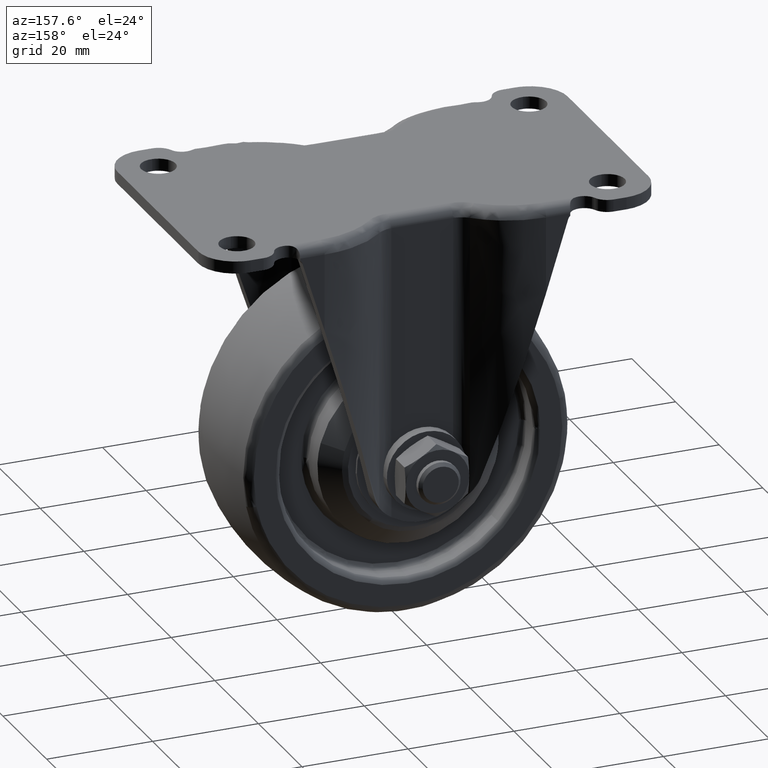
[diagram: clean part render]
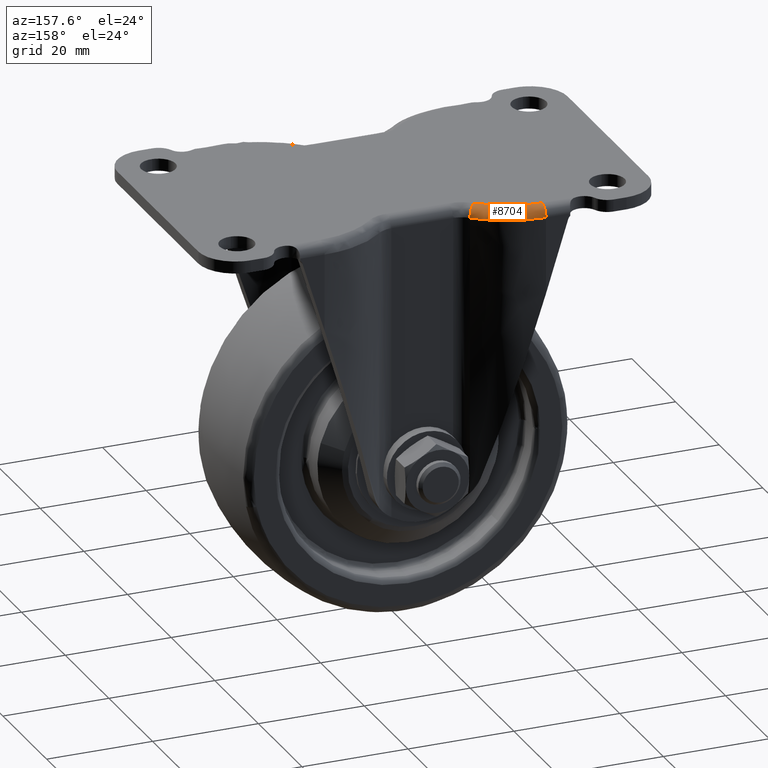
[diagram: same view with one face highlighted and labeled with its STEP entity id]
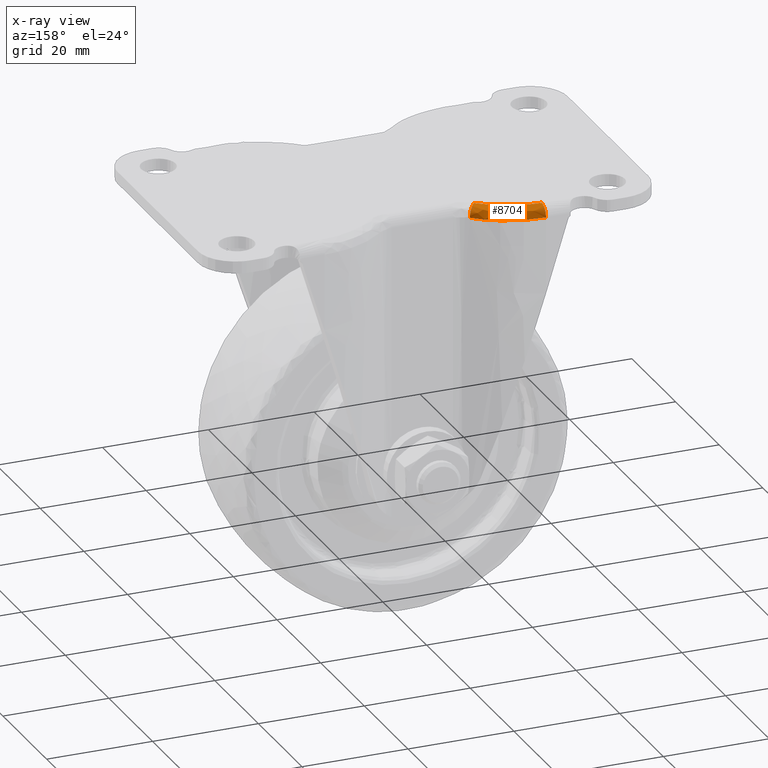
[diagram: x-ray of the same camera — body ghosted, the highlighted face saturated]
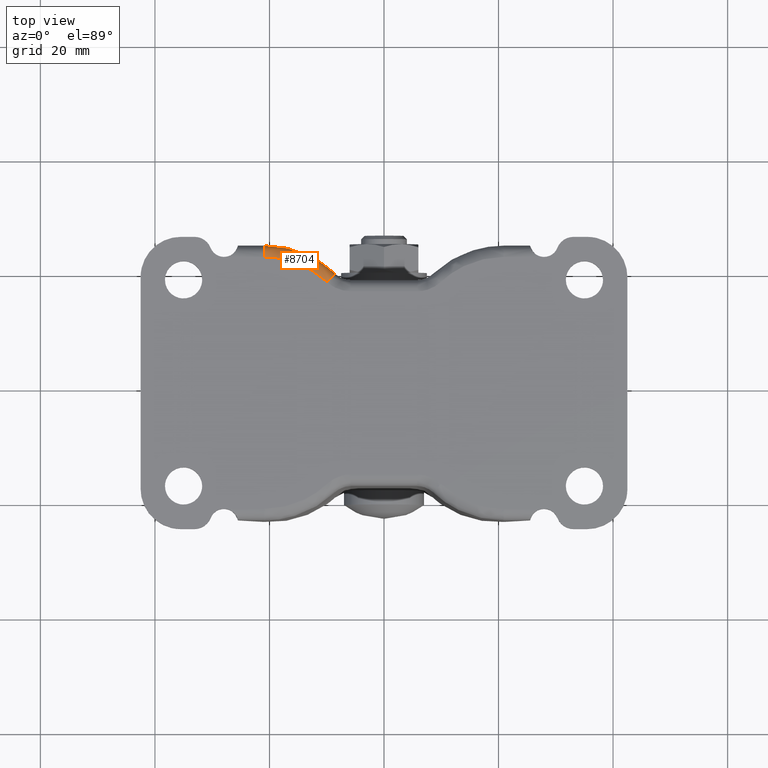
[diagram: same view with one face highlighted and labeled with its STEP entity id]
A machine part, auxiliary view. The second image highlights one B-rep face of the part: STEP entity #8704.
The next image is the same camera in x-ray: the body ghosted, the highlighted face saturated — about 0% of this face is hidden behind the body in this view.
A second angle (top view) of the same face is appended — the face is thin or edge-on in the first view.
In plain terms, the highlighted face is a freeform B-spline surface patch.
Its self-contained STEP definition (entity closure, byte-faithful):
#6302=CARTESIAN_POINT('',(-20.916408000000100,24.0,46.500000000000000));
#6303=VERTEX_POINT('',#6302);
#6346=CARTESIAN_POINT('',(-8.562133521472699,19.090909139903399,46.500000000000000));
#6347=VERTEX_POINT('',#6346);
#6348=CARTESIAN_POINT('',(-20.916408000000100,24.0,46.500000000000000));
#6349=CARTESIAN_POINT('',(-13.763933313176452,23.999999999999996,46.500000000000007));
#6350=CARTESIAN_POINT('',(-8.562133521472701,19.090909139903410,46.500000000000000));
#6358=(BOUNDED_CURVE()B_SPLINE_CURVE(2,(#6348,#6349,#6350),.UNSPECIFIED.,.F.,.U.)CURVE()GEOMETRIC_REPRESENTATION_ITEM()QUASI_UNIFORM_CURVE()RATIONAL_B_SPLINE_CURVE((1.0,0.929320378016816,1.0))REPRESENTATION_ITEM(''));
#6359=EDGE_CURVE('',#6303,#6347,#6358,.T.);
#8631=CARTESIAN_POINT('',(-20.916408000000100,22.0,48.500000000000000));
#8632=VERTEX_POINT('',#8631);
#8638=CARTESIAN_POINT('',(-20.916408000000100,22.0,48.500000000000000));
#8639=CARTESIAN_POINT('',(-20.916408000000096,23.999999999999996,48.500000000000007));
#8640=CARTESIAN_POINT('',(-20.916408000000100,24.0,46.500000000000000));
#8648=(BOUNDED_CURVE()B_SPLINE_CURVE(2,(#8638,#8639,#8640),.UNSPECIFIED.,.F.,.U.)CURVE()GEOMETRIC_REPRESENTATION_ITEM()QUASI_UNIFORM_CURVE()RATIONAL_B_SPLINE_CURVE((1.0,0.707106781186548,1.0))REPRESENTATION_ITEM(''));
#8649=EDGE_CURVE('',#8632,#6303,#8648,.T.);
#8655=CARTESIAN_POINT('',(-21.499414546644186,21.850207163182823,48.495158724599769));
#8656=CARTESIAN_POINT('',(-14.516280091212606,22.107062676911951,48.495158724599783));
#8657=CARTESIAN_POINT('',(-9.613838596305294,17.127483481178665,48.495158724599790));
#8658=CARTESIAN_POINT('',(-21.583741508610277,24.142805461260622,48.655074392023927));
#8659=CARTESIAN_POINT('',(-13.590555764703536,24.436812950832397,48.655074392023941));
#8660=CARTESIAN_POINT('',(-7.979017605510512,18.736979775340437,48.655074392023941));
#8661=CARTESIAN_POINT('',(-21.577863425207806,23.982997925328316,46.360925745325950));
#8662=CARTESIAN_POINT('',(-13.655084174977624,24.274415704474400,46.360925745325964));
#8663=CARTESIAN_POINT('',(-8.092974208570190,18.624788452038032,46.360925745325950));
#8671=(BOUNDED_SURFACE()B_SPLINE_SURFACE(2,2,((#8655,#8658,#8661),(#8656,#8659,#8662),(#8657,#8660,#8663)),.UNSPECIFIED.,.F.,.F.,.U.)B_SPLINE_SURFACE_WITH_KNOTS((3,3),(3,3),(0.0,15.153529225847860),(0.0,3.644747978229628),.UNSPECIFIED.)GEOMETRIC_REPRESENTATION_ITEM()RATIONAL_B_SPLINE_SURFACE(((0.860242166541785,0.564512367881646,0.860242155708091),(0.787430461275445,0.516731510643924,0.787430451358725),(0.860687052564624,0.564804313187234,0.860687041725327)))REPRESENTATION_ITEM('')SURFACE());
#8672=CARTESIAN_POINT('',(-9.934830624768930,17.636363744535000,48.500000000000000));
#8673=VERTEX_POINT('',#8672);
#8674=CARTESIAN_POINT('',(-9.934830624768930,17.636363744535000,48.500000000000000));
#8675=CARTESIAN_POINT('',(-8.562133460488107,19.090909204524269,48.500000000000007));
#8676=CARTESIAN_POINT('',(-8.562133460488106,19.090909204524269,46.500000000000000));
#8684=(BOUNDED_CURVE()B_SPLINE_CURVE(2,(#8674,#8675,#8676),.UNSPECIFIED.,.F.,.U.)CURVE()GEOMETRIC_REPRESENTATION_ITEM()QUASI_UNIFORM_CURVE()RATIONAL_B_SPLINE_CURVE((1.0,0.707106781186548,1.0))REPRESENTATION_ITEM(''));
#8685=EDGE_CURVE('',#8673,#6347,#8684,.T.);
#8686=ORIENTED_EDGE('',*,*,#8685,.T.);
#8687=ORIENTED_EDGE('',*,*,#6359,.F.);
#8688=ORIENTED_EDGE('',*,*,#8649,.F.);
#8689=CARTESIAN_POINT('',(-9.934830624768930,17.636363744535000,48.500000000000000));
#8690=CARTESIAN_POINT('',(-14.558652722823526,22.0,48.500000000000007));
#8691=CARTESIAN_POINT('',(-20.916408000000100,22.0,48.500000000000000));
#8699=(BOUNDED_CURVE()B_SPLINE_CURVE(2,(#8689,#8690,#8691),.UNSPECIFIED.,.F.,.U.)CURVE()GEOMETRIC_REPRESENTATION_ITEM()QUASI_UNIFORM_CURVE()RATIONAL_B_SPLINE_CURVE((1.0,0.929320378016816,1.0))REPRESENTATION_ITEM(''));
#8700=EDGE_CURVE('',#8673,#8632,#8699,.T.);
#8701=ORIENTED_EDGE('',*,*,#8700,.F.);
#8702=EDGE_LOOP('',(#8686,#8687,#8688,#8701));
#8703=FACE_OUTER_BOUND('',#8702,.T.);
#8704=ADVANCED_FACE('',(#8703),#8671,.T.);